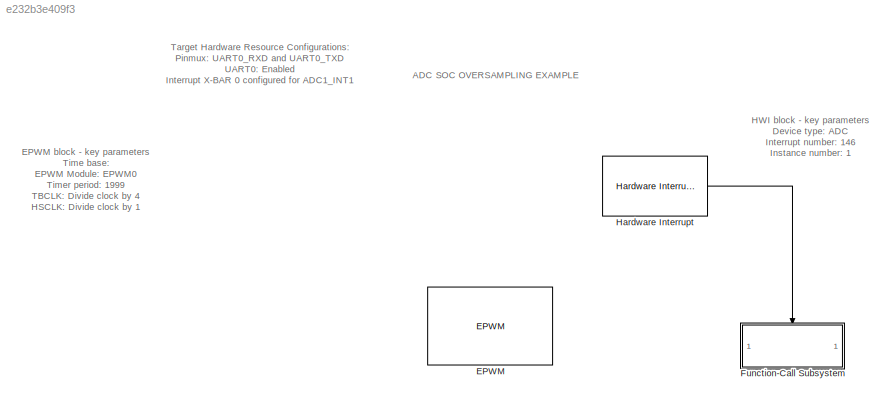
MODEL slx_e232b3e409f3
KIND model
CONFIG AbsTol = auto
CONFIG EnableMultiTasking = off
CONFIG FixedStep = auto
CONFIG MaxStep = auto
CONFIG MinStep = auto
CONFIG RelTol = 1e-3
CONFIG SampleTimeConstraint = Unconstrained
CONFIG SolverName = FixedStepAuto
CONFIG StartTime = 0.0
CONFIG StopTime = 10.0
BLOCK [Reference] EPWM  REF=peripheral_library_blocks_am263x/EPWM
  SourceBlock = peripheral_library_blocks_am263x/EPWM
  SourceType = EPWM_AM263X
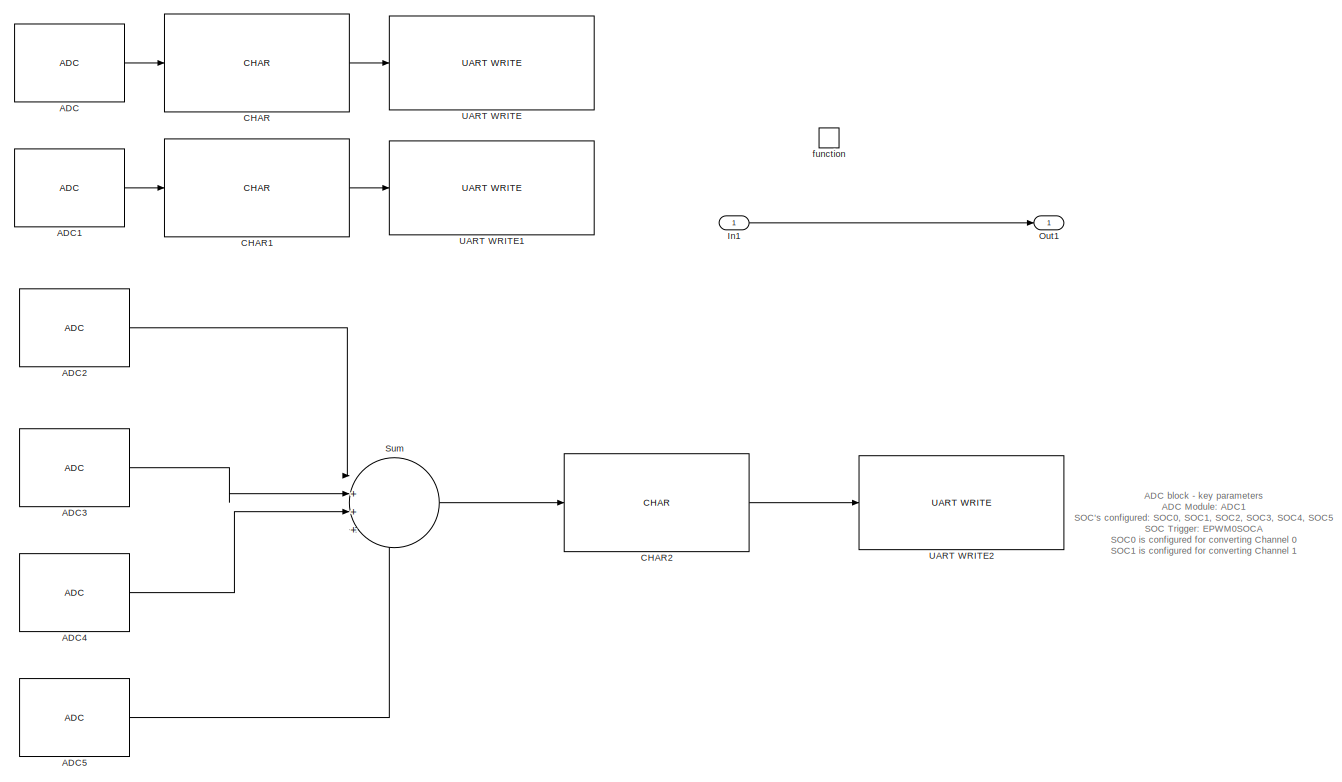
[diagram: Function-Call Subsystem - part 1/2, center side, full height]
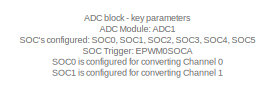
[diagram: Function-Call Subsystem - part 2/2, middle left region]
BLOCK [SubSystem] Function-Call Subsystem
  TreatAsAtomicUnit = on
BLOCK [Reference] Function-Call Subsystem/ADC  REF=peripheral_library_blocks_am263x/ADC
  SourceBlock = peripheral_library_blocks_am263x/ADC
  SourceType = ADC_AM263X
BLOCK [Reference] Function-Call Subsystem/ADC1  REF=peripheral_library_blocks_am263x/ADC
  SourceBlock = peripheral_library_blocks_am263x/ADC
  SourceType = ADC_AM263X
BLOCK [Reference] Function-Call Subsystem/ADC2  REF=peripheral_library_blocks_am263x/ADC
  SourceBlock = peripheral_library_blocks_am263x/ADC
  SourceType = ADC_AM263X
BLOCK [Reference] Function-Call Subsystem/ADC3  REF=peripheral_library_blocks_am263x/ADC
  SourceBlock = peripheral_library_blocks_am263x/ADC
  SourceType = ADC_AM263X
BLOCK [Reference] Function-Call Subsystem/ADC4  REF=peripheral_library_blocks_am263x/ADC
  SourceBlock = peripheral_library_blocks_am263x/ADC
  SourceType = ADC_AM263X
BLOCK [Reference] Function-Call Subsystem/ADC5  REF=peripheral_library_blocks_am263x/ADC
  SourceBlock = peripheral_library_blocks_am263x/ADC
  SourceType = ADC_AM263X
BLOCK [Reference] Function-Call Subsystem/CHAR  REF=peripheral_library_blocks_am263x/CHAR
  SourceBlock = peripheral_library_blocks_am263x/CHAR
  SourceType = CHAR
BLOCK [Reference] Function-Call Subsystem/CHAR1  REF=peripheral_library_blocks_am263x/CHAR
  SourceBlock = peripheral_library_blocks_am263x/CHAR
  SourceType = CHAR
BLOCK [Reference] Function-Call Subsystem/CHAR2  REF=peripheral_library_blocks_am263x/CHAR
  SourceBlock = peripheral_library_blocks_am263x/CHAR
  SourceType = CHAR
BLOCK [Inport] Function-Call Subsystem/In1
BLOCK [Outport] Function-Call Subsystem/Out1
BLOCK [Sum] Function-Call Subsystem/Sum
  Inputs = |++++
BLOCK [Reference] Function-Call Subsystem/UART WRITE  REF=peripheral_library_blocks_am263x/UART WRITE
  SourceBlock = peripheral_library_blocks_am263x/UART WRITE
  SourceType = UART_WRITE_AM263X
BLOCK [Reference] Function-Call Subsystem/UART WRITE1  REF=peripheral_library_blocks_am263x/UART WRITE
  SourceBlock = peripheral_library_blocks_am263x/UART WRITE
  SourceType = UART_WRITE_AM263X
BLOCK [Reference] Function-Call Subsystem/UART WRITE2  REF=peripheral_library_blocks_am263x/UART WRITE
  SourceBlock = peripheral_library_blocks_am263x/UART WRITE
  SourceType = UART_WRITE_AM263X
BLOCK [TriggerPort] Function-Call Subsystem/function
  StatesWhenEnabling = held
  TriggerType = function-call
  VariantControl = (inherit)
BLOCK [Reference] Hardware Interrupt  REF=HWI_lib/Hardware Interrupt
  SourceBlock = HWI_lib/Hardware Interrupt
  SourceProductName = Embedded Coder Support Package for AM263x - HWI Block
ANNOTATION (root): EPWM block - key parameters Time base: EPWM Module: EPWM0 Timer period: 1999 TBCLK: Divide clock by 4 HSCLK: Divide clock by 1 Counter mode: Up-count Counter compare: CMPA Value: 1000 CMPB Value: 0 CMPC Value: 0 CMPD Value: 0 Event Trigger: Enable EPWM Interrupt: True Event for EPWM interrupt generation: TBCTR equal to zero Enable ADC SOCA: True SOCA event selection: TBCTR equals CMPA when timer i...<+12ch>
ANNOTATION (root): ADC SOC OVERSAMPLING EXAMPLE
ANNOTATION (root): Target Hardware Resource Configurations: Pinmux: UART0_RXD and UART0_TXD UART0: Enabled Interrupt X-BAR 0 configured for ADC1_INT1
ANNOTATION (root): HWI block - key parameters Device type: ADC Interrupt number: 146 Instance number: 1
ANNOTATION Function-Call Subsystem: ADC block - key parameters ADC Module: ADC1 SOC's configured: SOC0, SOC1, SOC2, SOC3, SOC4, SOC5 SOC Trigger: EPWM0SOCA SOC0 is configured for converting Channel 0 SOC1 is configured for converting Channel 1 SOC2, SOC3, SOC4 and SOC5 is configured for converting Channel 3 SOC5 is configured to generate ADC Interrupt number 1
LINE Function-Call Subsystem/ADC1:1 -> Function-Call Subsystem/CHAR1:1
LINE Function-Call Subsystem/ADC2:1 -> Function-Call Subsystem/Sum:1
LINE Function-Call Subsystem/ADC3:1 -> Function-Call Subsystem/Sum:2
LINE Function-Call Subsystem/ADC4:1 -> Function-Call Subsystem/Sum:3
LINE Function-Call Subsystem/ADC5:1 -> Function-Call Subsystem/Sum:4
LINE Function-Call Subsystem/ADC:1 -> Function-Call Subsystem/CHAR:1
LINE Function-Call Subsystem/CHAR1:1 -> Function-Call Subsystem/UART WRITE1:1
LINE Function-Call Subsystem/CHAR2:1 -> Function-Call Subsystem/UART WRITE2:1
LINE Function-Call Subsystem/CHAR:1 -> Function-Call Subsystem/UART WRITE:1
LINE Function-Call Subsystem/In1:1 -> Function-Call Subsystem/Out1:1
LINE Function-Call Subsystem/Sum:1 -> Function-Call Subsystem/CHAR2:1
LINE Hardware Interrupt:1 -> Function-Call Subsystem:trigger
